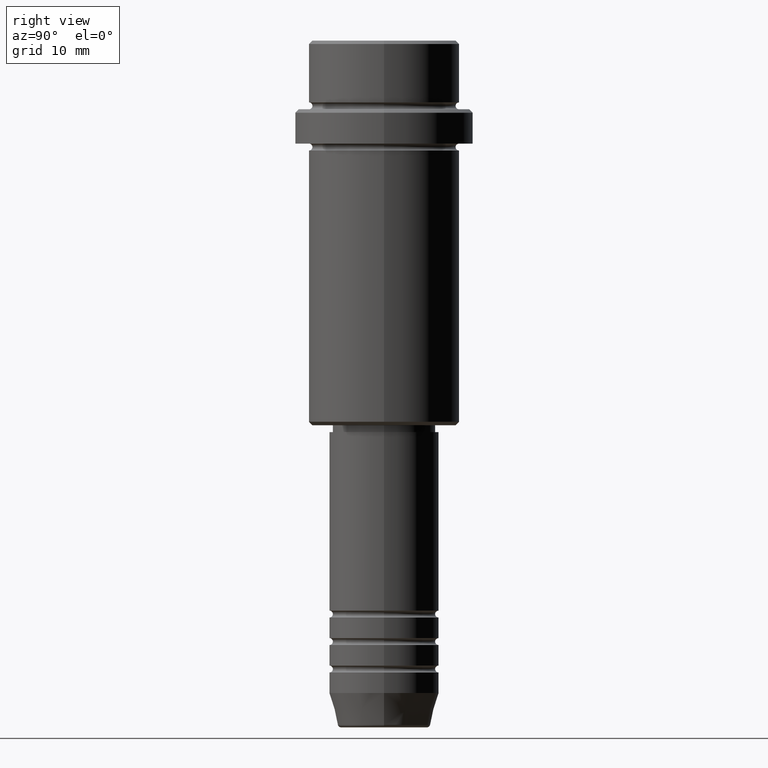
[diagram: clean part render]
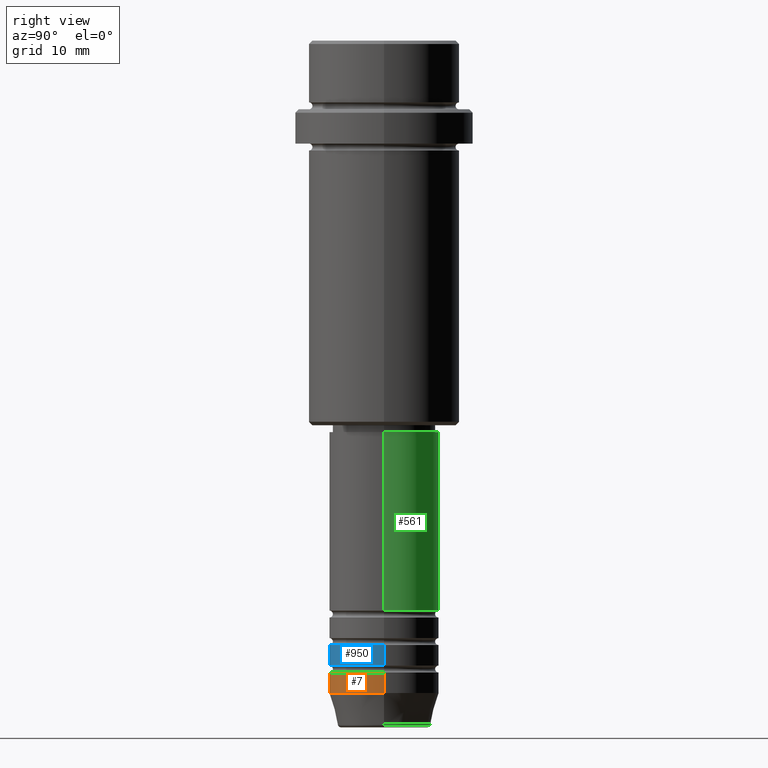
[diagram: same view with three faces highlighted in distinct colors, each labeled with its STEP entity id]
A machine part, right view with three faces highlighted in distinct colors.
Their STEP definitions:

[orange] entity #7 — the highlighted cylindrical surface (partial cylindrical patch) has radius 8 mm, axis along (-0, -0, 1).
#1 = EDGE_CURVE ( 'NONE', #481, #1380, #1241, .T. ) ;
#7 = ADVANCED_FACE ( 'NONE', ( #1038 ), #1142, .T. ) ;
#32 = CARTESIAN_POINT ( 'NONE',  ( 0.000000000000000000, 0.000000000000000000, -92.00000000000000000 ) ) ;
#124 = VERTEX_POINT ( 'NONE', #849 ) ;
#233 = EDGE_CURVE ( 'NONE', #124, #1268, #284, .T. ) ;
#258 = DIRECTION ( 'NONE',  ( -0.000000000000000000, -0.000000000000000000, 1.000000000000000000 ) ) ;
#264 = ORIENTED_EDGE ( 'NONE', *, *, #420, .F. ) ;
#284 = CIRCLE ( 'NONE', #766, 8.000000000000000000 ) ;
#292 = CARTESIAN_POINT ( 'NONE',  ( 8.000000000000000000, 0.000000000000000000, 0.000000000000000000 ) ) ;
#362 = DIRECTION ( 'NONE',  ( 1.000000000000000000, 0.000000000000000000, 0.000000000000000000 ) ) ;
#420 = EDGE_CURVE ( 'NONE', #481, #124, #536, .T. ) ;
#463 = ORIENTED_EDGE ( 'NONE', *, *, #233, .F. ) ;
#481 = VERTEX_POINT ( 'NONE', #1077 ) ;
#487 = DIRECTION ( 'NONE',  ( 1.000000000000000000, 0.000000000000000000, 0.000000000000000000 ) ) ;
#501 = EDGE_CURVE ( 'NONE', #1380, #1268, #967, .T. ) ;
#536 = LINE ( 'NONE', #1166, #997 ) ;
#544 = DIRECTION ( 'NONE',  ( -0.000000000000000000, -0.000000000000000000, 1.000000000000000000 ) ) ;
#583 = CARTESIAN_POINT ( 'NONE',  ( 0.000000000000000000, 0.000000000000000000, 0.000000000000000000 ) ) ;
#687 = ORIENTED_EDGE ( 'NONE', *, *, #501, .T. ) ;
#720 = VECTOR ( 'NONE', #544, 1000.000000000000000 ) ;
#766 = AXIS2_PLACEMENT_3D ( 'NONE', #32, #258, #1350 ) ;
#801 = CARTESIAN_POINT ( 'NONE',  ( 8.000000000000000000, 0.000000000000000000, -95.00000000000000000 ) ) ;
#818 = ORIENTED_EDGE ( 'NONE', *, *, #1, .T. ) ;
#849 = CARTESIAN_POINT ( 'NONE',  ( -8.000000000000000000, 9.797174393178825657E-16, -92.00000000000000000 ) ) ;
#881 = AXIS2_PLACEMENT_3D ( 'NONE', #917, #1371, #362 ) ;
#907 = CARTESIAN_POINT ( 'NONE',  ( 8.000000000000000000, 0.000000000000000000, -92.00000000000000000 ) ) ;
#917 = CARTESIAN_POINT ( 'NONE',  ( 0.000000000000000000, 0.000000000000000000, -95.00000000000000000 ) ) ;
#967 = LINE ( 'NONE', #292, #720 ) ;
#997 = VECTOR ( 'NONE', #1407, 1000.000000000000000 ) ;
#1032 = DIRECTION ( 'NONE',  ( -0.000000000000000000, -0.000000000000000000, 1.000000000000000000 ) ) ;
#1038 = FACE_OUTER_BOUND ( 'NONE', #1304, .T. ) ;
#1077 = CARTESIAN_POINT ( 'NONE',  ( -8.000000000000000000, 9.797174393178825657E-16, -95.00000000000000000 ) ) ;
#1142 = CYLINDRICAL_SURFACE ( 'NONE', #1207, 8.000000000000000000 ) ;
#1166 = CARTESIAN_POINT ( 'NONE',  ( -8.000000000000000000, 9.797174393178825657E-16, 0.000000000000000000 ) ) ;
#1207 = AXIS2_PLACEMENT_3D ( 'NONE', #583, #1032, #487 ) ;
#1241 = CIRCLE ( 'NONE', #881, 8.000000000000000000 ) ;
#1268 = VERTEX_POINT ( 'NONE', #907 ) ;
#1304 = EDGE_LOOP ( 'NONE', ( #264, #818, #687, #463 ) ) ;
#1350 = DIRECTION ( 'NONE',  ( 1.000000000000000000, 0.000000000000000000, 0.000000000000000000 ) ) ;
#1371 = DIRECTION ( 'NONE',  ( -0.000000000000000000, -0.000000000000000000, 1.000000000000000000 ) ) ;
#1380 = VERTEX_POINT ( 'NONE', #801 ) ;
#1407 = DIRECTION ( 'NONE',  ( -0.000000000000000000, -0.000000000000000000, 1.000000000000000000 ) ) ;

[blue] entity #950 — the highlighted cylindrical surface (partial cylindrical patch) has radius 8 mm, axis along (-0, -0, 1).
#20 = CARTESIAN_POINT ( 'NONE',  ( -8.000000000000000000, 9.797174393178825657E-16, 0.000000000000000000 ) ) ;
#58 = VECTOR ( 'NONE', #891, 1000.000000000000000 ) ;
#75 = CARTESIAN_POINT ( 'NONE',  ( -8.000000000000000000, 9.797174393178825657E-16, -87.99999999999988631 ) ) ;
#94 = CARTESIAN_POINT ( 'NONE',  ( 8.000000000000000000, 0.000000000000000000, -90.99999999999988631 ) ) ;
#127 = CARTESIAN_POINT ( 'NONE',  ( 8.000000000000000000, 0.000000000000000000, -87.99999999999988631 ) ) ;
#143 = CARTESIAN_POINT ( 'NONE',  ( -8.000000000000000000, 9.797174393178825657E-16, -90.99999999999988631 ) ) ;
#159 = ORIENTED_EDGE ( 'NONE', *, *, #635, .T. ) ;
#172 = CIRCLE ( 'NONE', #314, 8.000000000000000000 ) ;
#253 = ORIENTED_EDGE ( 'NONE', *, *, #1183, .F. ) ;
#279 = DIRECTION ( 'NONE',  ( 1.000000000000000000, 0.000000000000000000, 0.000000000000000000 ) ) ;
#314 = AXIS2_PLACEMENT_3D ( 'NONE', #395, #595, #845 ) ;
#326 = DIRECTION ( 'NONE',  ( -0.000000000000000000, -0.000000000000000000, 1.000000000000000000 ) ) ;
#332 = DIRECTION ( 'NONE',  ( 1.000000000000000000, 0.000000000000000000, 0.000000000000000000 ) ) ;
#380 = CARTESIAN_POINT ( 'NONE',  ( 8.000000000000000000, 0.000000000000000000, 0.000000000000000000 ) ) ;
#388 = VERTEX_POINT ( 'NONE', #75 ) ;
#395 = CARTESIAN_POINT ( 'NONE',  ( 0.000000000000000000, 0.000000000000000000, -90.99999999999988631 ) ) ;
#529 = VERTEX_POINT ( 'NONE', #127 ) ;
#533 = ORIENTED_EDGE ( 'NONE', *, *, #993, .F. ) ;
#595 = DIRECTION ( 'NONE',  ( -0.000000000000000000, -0.000000000000000000, 1.000000000000000000 ) ) ;
#635 = EDGE_CURVE ( 'NONE', #1021, #529, #1002, .T. ) ;
#663 = VERTEX_POINT ( 'NONE', #143 ) ;
#845 = DIRECTION ( 'NONE',  ( 1.000000000000000000, 0.000000000000000000, 0.000000000000000000 ) ) ;
#875 = EDGE_CURVE ( 'NONE', #663, #1021, #172, .T. ) ;
#878 = VECTOR ( 'NONE', #1154, 1000.000000000000000 ) ;
#891 = DIRECTION ( 'NONE',  ( -0.000000000000000000, -0.000000000000000000, 1.000000000000000000 ) ) ;
#932 = FACE_OUTER_BOUND ( 'NONE', #1187, .T. ) ;
#947 = CYLINDRICAL_SURFACE ( 'NONE', #1112, 8.000000000000000000 ) ;
#950 = ADVANCED_FACE ( 'NONE', ( #932 ), #947, .T. ) ;
#993 = EDGE_CURVE ( 'NONE', #388, #529, #1047, .T. ) ;
#1002 = LINE ( 'NONE', #380, #878 ) ;
#1021 = VERTEX_POINT ( 'NONE', #94 ) ;
#1024 = LINE ( 'NONE', #20, #58 ) ;
#1047 = CIRCLE ( 'NONE', #1273, 8.000000000000000000 ) ;
#1112 = AXIS2_PLACEMENT_3D ( 'NONE', #1269, #1368, #279 ) ;
#1154 = DIRECTION ( 'NONE',  ( -0.000000000000000000, -0.000000000000000000, 1.000000000000000000 ) ) ;
#1169 = ORIENTED_EDGE ( 'NONE', *, *, #875, .T. ) ;
#1183 = EDGE_CURVE ( 'NONE', #663, #388, #1024, .T. ) ;
#1187 = EDGE_LOOP ( 'NONE', ( #253, #1169, #159, #533 ) ) ;
#1269 = CARTESIAN_POINT ( 'NONE',  ( 0.000000000000000000, 0.000000000000000000, 0.000000000000000000 ) ) ;
#1273 = AXIS2_PLACEMENT_3D ( 'NONE', #1290, #326, #332 ) ;
#1290 = CARTESIAN_POINT ( 'NONE',  ( 0.000000000000000000, 0.000000000000000000, -87.99999999999988631 ) ) ;
#1368 = DIRECTION ( 'NONE',  ( -0.000000000000000000, -0.000000000000000000, 1.000000000000000000 ) ) ;

[green] entity #561 — the highlighted cylindrical surface (partial cylindrical patch) has radius 8 mm, axis along (-0, -0, 1).
#33 = VERTEX_POINT ( 'NONE', #712 ) ;
#47 = LINE ( 'NONE', #1090, #1043 ) ;
#140 = DIRECTION ( 'NONE',  ( -0.000000000000000000, -0.000000000000000000, 1.000000000000000000 ) ) ;
#144 = AXIS2_PLACEMENT_3D ( 'NONE', #686, #140, #1124 ) ;
#313 = EDGE_CURVE ( 'NONE', #1315, #33, #47, .T. ) ;
#349 = DIRECTION ( 'NONE',  ( 1.000000000000000000, 0.000000000000000000, 0.000000000000000000 ) ) ;
#435 = ORIENTED_EDGE ( 'NONE', *, *, #1136, .T. ) ;
#437 = VERTEX_POINT ( 'NONE', #1291 ) ;
#459 = CYLINDRICAL_SURFACE ( 'NONE', #1295, 8.000000000000000000 ) ;
#492 = AXIS2_PLACEMENT_3D ( 'NONE', #827, #1143, #701 ) ;
#561 = ADVANCED_FACE ( 'NONE', ( #776 ), #459, .T. ) ;
#582 = VECTOR ( 'NONE', #1410, 1000.000000000000000 ) ;
#686 = CARTESIAN_POINT ( 'NONE',  ( 0.000000000000000000, 0.000000000000000000, -82.99999999999988631 ) ) ;
#701 = DIRECTION ( 'NONE',  ( 1.000000000000000000, 0.000000000000000000, 0.000000000000000000 ) ) ;
#712 = CARTESIAN_POINT ( 'NONE',  ( -8.000000000000000000, 9.797174393178825657E-16, -57.00000000000000000 ) ) ;
#747 = ORIENTED_EDGE ( 'NONE', *, *, #1325, .F. ) ;
#775 = EDGE_CURVE ( 'NONE', #437, #1349, #1200, .T. ) ;
#776 = FACE_OUTER_BOUND ( 'NONE', #1167, .T. ) ;
#810 = CIRCLE ( 'NONE', #492, 8.000000000000000000 ) ;
#827 = CARTESIAN_POINT ( 'NONE',  ( 0.000000000000000000, 0.000000000000000000, -57.00000000000000000 ) ) ;
#870 = DIRECTION ( 'NONE',  ( -0.000000000000000000, -0.000000000000000000, 1.000000000000000000 ) ) ;
#903 = CIRCLE ( 'NONE', #144, 8.000000000000000000 ) ;
#1043 = VECTOR ( 'NONE', #1384, 1000.000000000000000 ) ;
#1090 = CARTESIAN_POINT ( 'NONE',  ( -8.000000000000000000, 9.797174393178825657E-16, 0.000000000000000000 ) ) ;
#1124 = DIRECTION ( 'NONE',  ( 1.000000000000000000, 0.000000000000000000, 0.000000000000000000 ) ) ;
#1136 = EDGE_CURVE ( 'NONE', #437, #1315, #903, .T. ) ;
#1143 = DIRECTION ( 'NONE',  ( -0.000000000000000000, -0.000000000000000000, 1.000000000000000000 ) ) ;
#1167 = EDGE_LOOP ( 'NONE', ( #435, #1362, #747, #1367 ) ) ;
#1194 = CARTESIAN_POINT ( 'NONE',  ( 8.000000000000000000, 0.000000000000000000, 0.000000000000000000 ) ) ;
#1200 = LINE ( 'NONE', #1194, #582 ) ;
#1214 = CARTESIAN_POINT ( 'NONE',  ( 0.000000000000000000, 0.000000000000000000, 0.000000000000000000 ) ) ;
#1260 = CARTESIAN_POINT ( 'NONE',  ( -8.000000000000000000, 9.797174393178825657E-16, -82.99999999999988631 ) ) ;
#1291 = CARTESIAN_POINT ( 'NONE',  ( 8.000000000000000000, 0.000000000000000000, -82.99999999999988631 ) ) ;
#1295 = AXIS2_PLACEMENT_3D ( 'NONE', #1214, #870, #349 ) ;
#1315 = VERTEX_POINT ( 'NONE', #1260 ) ;
#1325 = EDGE_CURVE ( 'NONE', #1349, #33, #810, .T. ) ;
#1348 = CARTESIAN_POINT ( 'NONE',  ( 8.000000000000000000, 0.000000000000000000, -57.00000000000000000 ) ) ;
#1349 = VERTEX_POINT ( 'NONE', #1348 ) ;
#1362 = ORIENTED_EDGE ( 'NONE', *, *, #313, .T. ) ;
#1367 = ORIENTED_EDGE ( 'NONE', *, *, #775, .F. ) ;
#1384 = DIRECTION ( 'NONE',  ( -0.000000000000000000, -0.000000000000000000, 1.000000000000000000 ) ) ;
#1410 = DIRECTION ( 'NONE',  ( -0.000000000000000000, -0.000000000000000000, 1.000000000000000000 ) ) ;